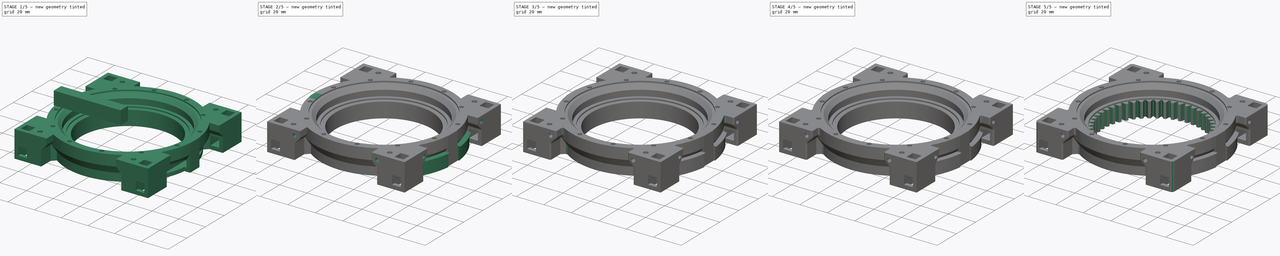
[diagram: build sequence overview — one tinted view per stage of 5, left to right]
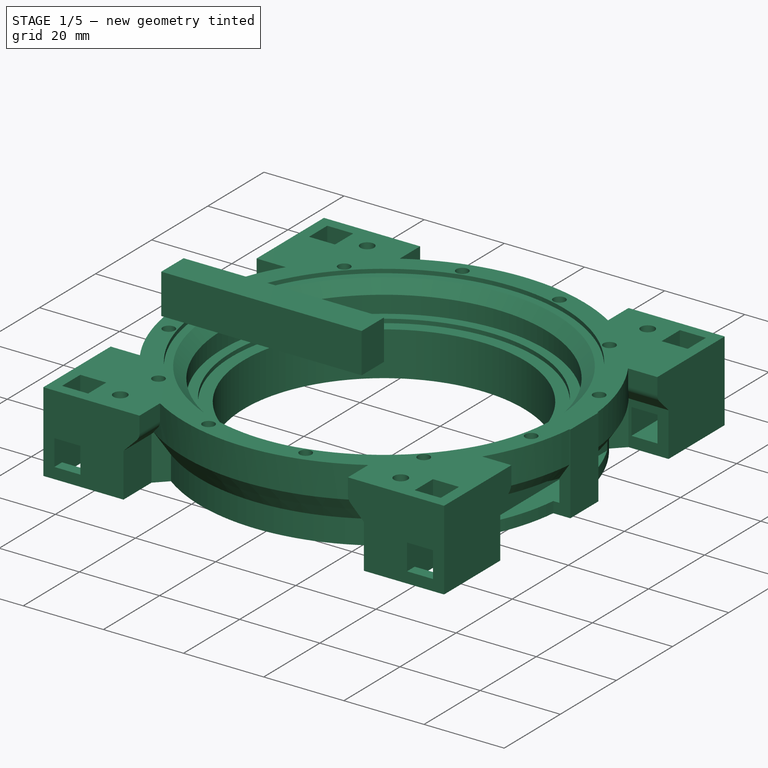
[diagram: stage 1 of 5 — iso view after this stage's code; geometry added in this stage tinted green]
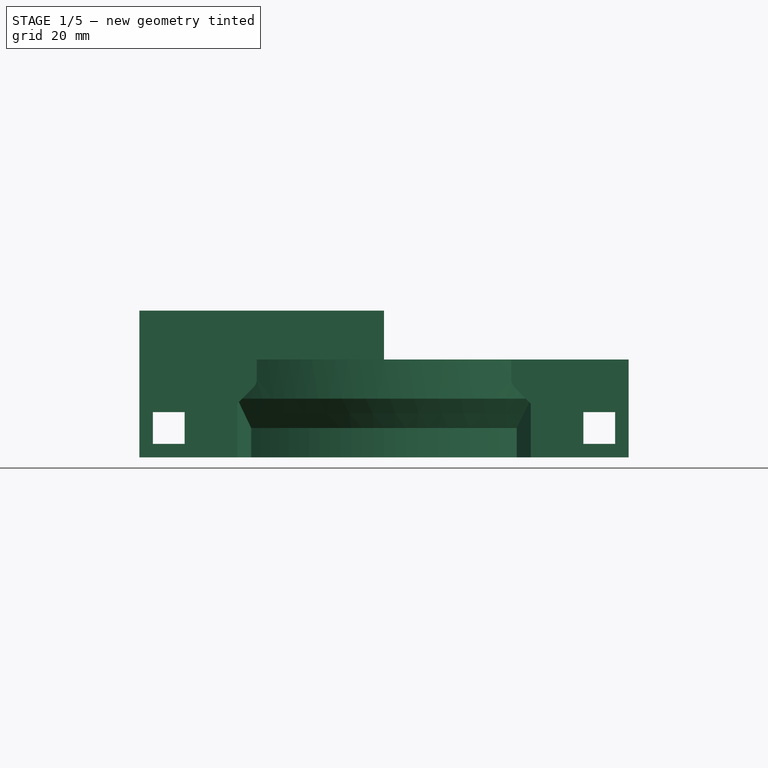
[diagram: stage 1 of 5 — front view after this stage's code; geometry added in this stage tinted green]
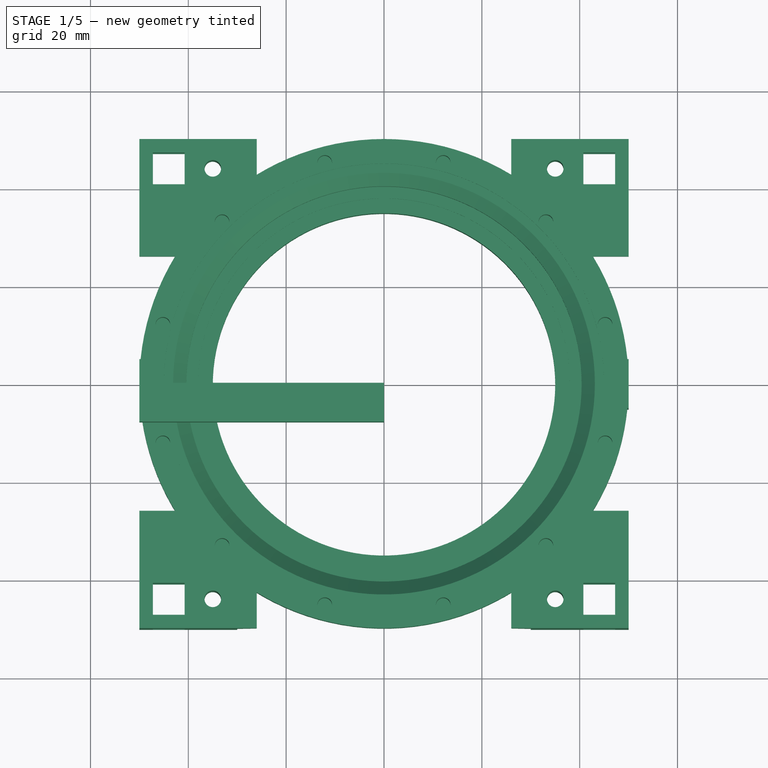
[diagram: stage 1 of 5 — top view after this stage's code; geometry added in this stage tinted green]
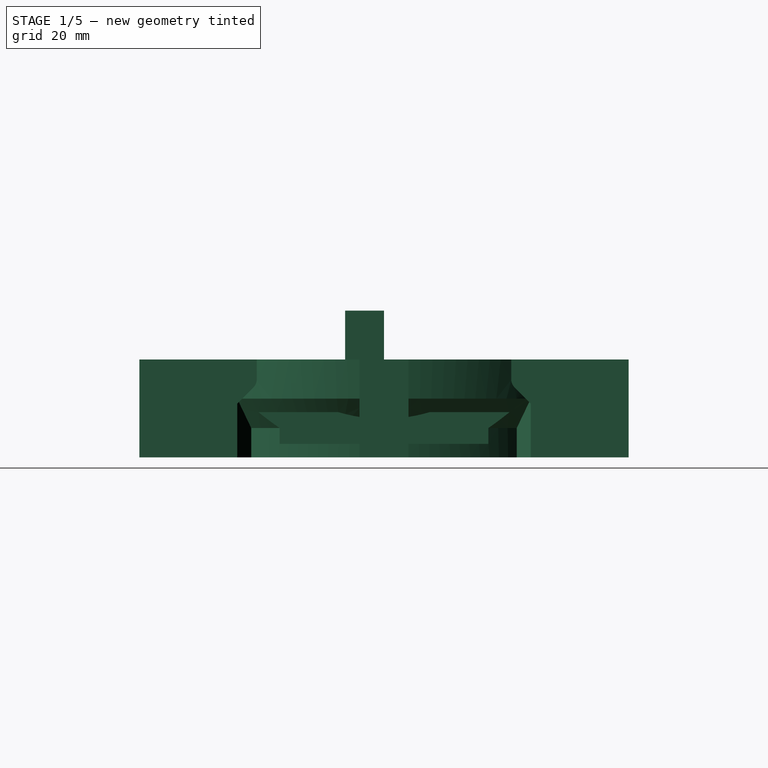
[diagram: stage 1 of 5 — right view after this stage's code; geometry added in this stage tinted green]
FCSTD DOCUMENT  (FreeCAD 0.16R6706 (Git))
Label: RingFixedV2
License: All rights reserved
LicenseURL: http://en.wikipedia.org/wiki/All_rights_reserved
objects: PartDesign::Fillet×36, Sketcher::SketchObject×12, PartDesign::Pad×7, PartDesign::Pocket×5, PartDesign::PolarPattern×4, PartDesign::Revolution×1, Part::Part2DObjectPython×1, PartDesign::Mirrored×1, Part::Cut×1
note: 81 computed .brp shape members not serialized (recipe doc carries the construction recipe); baked Part::Feature solids carry a one-line shape summary decoded from their .brp

FEATURE [Sketcher::SketchObject] Sketch013
  Placement = pos=(0,0,0) rot=(1,0,0;1.5708rad)
  sketch-geometry (24):
    g0: LineSegment StartX=35 StartY=9 StartZ=0 EndX=46 EndY=9 EndZ=0
    g1: LineSegment StartX=35 StartY=9 StartZ=0 EndX=35 EndY=20 EndZ=0
    g2: LineSegment StartX=46 StartY=9 StartZ=0 EndX=46 EndY=15 EndZ=0
    g3: LineSegment StartX=35 StartY=20 StartZ=0 EndX=38 EndY=20 EndZ=0
    g4: LineSegment StartX=38 StartY=20 StartZ=0 EndX=38 EndY=21 EndZ=0
    g5: LineSegment StartX=38 StartY=21 StartZ=0 EndX=40.4 EndY=21 EndZ=0
    g6: LineSegment StartX=46 StartY=15 StartZ=0 EndX=50 EndY=21 EndZ=0
    g7: LineSegment StartX=40.4 StartY=21 StartZ=0 EndX=40.4 EndY=25.2988 EndZ=0
    g8: LineSegment StartX=40.4 StartY=25.2988 StartZ=0 EndX=43.1012 EndY=28 EndZ=0
    g9: LineSegment StartX=45 StartY=29 StartZ=0 EndX=50 EndY=29 EndZ=0
    g10: LineSegment StartX=50 StartY=29 StartZ=0 EndX=50 EndY=21 EndZ=0
    g11: LineSegment StartX=43.1012 StartY=28 StartZ=0 EndX=45 EndY=28 EndZ=0
    g12: LineSegment StartX=45 StartY=28 StartZ=0 EndX=45 EndY=29 EndZ=0
    g13: Circle [constr] CenterX=40 CenterY=29 CenterZ=0 NormalX=0 NormalY=0 NormalZ=1 Radius=2.9
    g14: LineSegment [constr] StartX=40 StartY=29 StartZ=0 EndX=45 EndY=29 EndZ=0
    g15: Circle CenterX=44.1719 CenterY=24.8281 CenterZ=0 NormalX=0 NormalY=0 NormalZ=1 Radius=0.2
    g16: LineSegment [constr] StartX=42.0506 StartY=26.9494 StartZ=0 EndX=44.1719 EndY=24.8281 EndZ=0
    g17: Circle CenterX=39.5 CenterY=18 CenterZ=0 NormalX=0 NormalY=0 NormalZ=1 Radius=0.15
    g18: Circle CenterX=39.5 CenterY=16 CenterZ=0 NormalX=0 NormalY=0 NormalZ=1 Radius=0.15
    g19: Circle CenterX=39.5 CenterY=14 CenterZ=0 NormalX=0 NormalY=0 NormalZ=1 Radius=0.15
    g20: LineSegment [constr] StartX=39.5 StartY=21 StartZ=0 EndX=39.5 EndY=9 EndZ=0
    g21: Circle CenterX=39.5 CenterY=12 CenterZ=0 NormalX=0 NormalY=0 NormalZ=1 Radius=0.15
    g22: Circle CenterX=39.5 CenterY=10 CenterZ=0 NormalX=0 NormalY=0 NormalZ=1 Radius=0.15
    g23: LineSegment [constr] StartX=0 StartY=0 StartZ=0 EndX=0 EndY=29 EndZ=0
  constraints (75):
    c: Horizontal(g0)
    c: DistanceX(g-1,g0) = 46
    c: Vertical(g1)
    c: Coincident(g2,g0)
    c: Vertical(g2)
    c: Coincident(g3,g1)
    c: Horizontal(g3)
    c: Coincident(g4,g3)
    c: Vertical(g4)
    c: Coincident(g5,g4)
    c: Horizontal(g5)
    c: Coincident(g6,g2)
    c: DistanceX(g-1,g1) = 35
    c: DistanceY(g4,g1) = -12
    c: DistanceY(g3,g4) = 1
    c: DistanceX(g-1,g6) = 50
    c: DistanceX(g-1,g3) = 38
    c: Coincident(g5,g7)
    c: Vertical(g7)
    c: Coincident(g7,g8)
    c: Horizontal(g9)
    c: Coincident(g10,g9)
    c: Coincident(g10,g6)
    c: Vertical(g10)
    c: Coincident(g8,g11)
    c: Coincident(g11,g12)
    c: Coincident(g9,g12)
    c: Vertical(g12)
    c: Horizontal(g11)
    c: Radius(g13) = 2.9
    c: Tangent(g8,g13)
    c: Coincident(g14,g13)
    c: Horizontal(g14)
    c: Angle(g8,g14) = 2.35619
    c: DistanceX(g13,g7) = 0.4
    c: DistanceY(g8,g13) = 1
    c: Coincident(g9,g14)
    c: DistanceX(g-1,g11) = 45
    c: DistanceX(g-1,g13) = 40
    c: DistanceY(g4,g13) = 8
    c: DistanceY(g6,g9) = 8
    c: DistanceX(g9,g9) = 5
    c: DistanceX(g8,g11) = 1.89878
    c: DistanceY(g0,g9) = 20
    c: Radius(g15) = 0.2
    c: PointOnObject(g16,g13)
    c: PointOnObject(g16,g8)
    c: Angle(g8,g16) = 1.5708
    c: Coincident(g15,g16)
    c: Distance(g16,g15) = 3
    c: Vertical(g20)
    c: PointOnObject(g17,g20)
    c: PointOnObject(g18,g20)
    c: PointOnObject(g19,g20)
    c: Radius(g17) = 0.15
    c: Equal(g17,g18)
    c: Equal(g17,g19)
    c: PointOnObject(g20,g0)
    c: DistanceY(g17,g3) = 2
    c: DistanceY(g18,g17) = 2
    c: DistanceY(g19,g18) = 2
    c: PointOnObject(g20,g5)
    c: DistanceX(g3,g20) = 1.5
    c: PointOnObject(g21,g20)
    c: PointOnObject(g22,g20)
    c: Radius(g21) = 0.15
    c: Radius(g22) = 0.15
    c: DistanceY(g21,g19) = 2
    c: DistanceY(g22,g21) = 2
    c: Coincident(g0,g1)
    c: DistanceY(g2,g2) = 6
    c: DistanceY(g-1,g0) = 9
    c: Coincident(g23,g-1)
    c: Vertical(g23)
    c: DistanceY(g-1,g23) = 29
FEATURE [PartDesign::Revolution] Revolution
  Angle = 360
  Axis = (0,0,1)
  Base = (0,0,0)
  Placement = pos=(0,0,0) rot=(1,0,0;1.5708rad)
  ReferenceAxis = -> Sketch013 [V_Axis]
  Reversed = true
  Sketch = -> Sketch013
FEATURE [PartDesign::Pad] Pad
  Length = 20
  Length2 = 100
  Placement = pos=(0,0,0) rot=(1,0,0;1.5708rad)
  Reversed = true
  Sketch = -> Sketch022
  Type = 0
FEATURE [Sketcher::SketchObject] Sketch033  label="Motor Mount Holes"
  Placement = pos=(0,0,9) rot=(1,0,0;3.14159rad)
  Support = -> Pad [Face75]
  sketch-geometry (9):
    g0: LineSegment [constr] StartX=-30 StartY=30 StartZ=0 EndX=30 EndY=30 EndZ=0
    g1: LineSegment [constr] StartX=30 StartY=30 StartZ=0 EndX=30 EndY=-30 EndZ=0
    g2: LineSegment [constr] StartX=30 StartY=-30 StartZ=0 EndX=-30 EndY=-30 EndZ=0
    g3: LineSegment [constr] StartX=-30 StartY=-30 StartZ=0 EndX=-30 EndY=30 EndZ=0
    g4: Circle CenterX=30 CenterY=-30 CenterZ=0 NormalX=0 NormalY=0 NormalZ=1 Radius=1.5
    g5: Circle CenterX=-30 CenterY=-30 CenterZ=0 NormalX=0 NormalY=0 NormalZ=1 Radius=1.5
    g6: Circle CenterX=-30 CenterY=30 CenterZ=0 NormalX=0 NormalY=0 NormalZ=1 Radius=1.5
    g7: Circle CenterX=30 CenterY=30 CenterZ=0 NormalX=0 NormalY=0 NormalZ=1 Radius=1.5
    g8: Circle CenterX=0 CenterY=0 CenterZ=0 NormalX=0 NormalY=0 NormalZ=1 Radius=34
  constraints (21):
    c: Coincident(g0,g1)
    c: Coincident(g1,g2)
    c: Coincident(g2,g3)
    c: Coincident(g3,g0)
    c: Horizontal(g0)
    c: Horizontal(g2)
    c: Vertical(g1)
    c: Vertical(g3)
    c: Symmetric(g2,g0,g-1)
    c: Equal(g2,g1)
    c: DistanceY(g1,g0) = 60
    c: Coincident(g4,g1)
    c: Coincident(g5,g2)
    c: Coincident(g6,g0)
    c: Coincident(g7,g0)
    c: Radius(g7) = 1.5
    c: Equal(g7,g4)
    c: Equal(g7,g5)
    c: Equal(g7,g6)
    c: Coincident(g8,g-1)
    c: Radius(g8) = 34
FEATURE [PartDesign::Pocket] Pocket
  Length = 14
  Placement = pos=(0,0,0) rot=(1,0,0;1.5708rad)
  Sketch = -> Sketch033
  Type = 0
FEATURE [Sketcher::SketchObject] Sketch  label="BearingScrewHoles"
  Placement = pos=(0,0,29) rot=(0,0,1;3.14159rad)
  Support = -> Pocket [Face22]
  sketch-geometry (2):
    g0: Circle CenterX=45.2053 CenterY=12.1127 CenterZ=0 NormalX=0 NormalY=0 NormalZ=1 Radius=1.5
    g1: LineSegment [constr] StartX=0 StartY=0 StartZ=0 EndX=45.2053 EndY=12.1127 EndZ=0
  constraints (5):
    c: Radius(g0) = 1.5
    c: Coincident(g1,g-1)
    c: Coincident(g1,g0)
    c: Distance(g-1,g0) = 46.8
    c: Angle(g-1,g1) = 0.261799
FEATURE [PartDesign::Pocket] Pocket001
  Length = 10
  Placement = pos=(0,0,0) rot=(1,0,0;1.5708rad)
  Sketch = -> Sketch
  Type = 0
FEATURE [PartDesign::PolarPattern] PolarPattern
  Angle = 360
  Axis = -> Sketch [N_Axis]
  Occurrences = 12
  Originals = -> [Pocket001]
  Placement = pos=(0,0,0) rot=(1,0,0;1.5708rad)
FEATURE [Sketcher::SketchObject] Sketch034
  Placement = pos=(0,0,9) rot=(1,0,0;3.14159rad)
  Support = -> PolarPattern [Face99]
  sketch-geometry (4):
    g0: LineSegment StartX=-50 StartY=5 StartZ=0 EndX=-44.7214 EndY=5 EndZ=0
    g1: LineSegment StartX=-44.7214 StartY=-5 StartZ=0 EndX=-50 EndY=-5 EndZ=0
    g2: LineSegment StartX=-50 StartY=-5 StartZ=0 EndX=-50 EndY=5 EndZ=0
    g3: ArcOfCircle CenterX=0 CenterY=0 CenterZ=0 NormalX=0 NormalY=0 NormalZ=1 Radius=45 StartAngle=3.03025 EndAngle=3.25293
  constraints (12):
    c: Coincident(g1,g2)
    c: Coincident(g2,g0)
    c: Horizontal(g0)
    c: Horizontal(g1)
    c: Vertical(g2)
    c: Coincident(g3,g-1)
    c: Coincident(g3,g0)
    c: Coincident(g1,g3)
    c: Radius(g3) = 45
    c: DistanceX(g1,g-1) = 50
    c: Symmetric(g1,g0,g-1)
    c: DistanceY(g1,g0) = 10
FEATURE [PartDesign::Pad] Pad014
  Length = 20
  Length2 = 100
  Placement = pos=(0,0,0) rot=(1,0,0;1.5708rad)
  Reversed = true
  Sketch = -> Sketch034
  Type = 0
FEATURE [PartDesign::PolarPattern] PolarPattern001
  Angle = 360
  Axis = -> Sketch034 [N_Axis]
  Occurrences = 2
  Originals = -> [Pad014]
  Placement = pos=(0,0,0) rot=(1,0,0;1.5708rad)
FEATURE [Sketcher::SketchObject] Sketch024  label="VerticalMountPlane"
  Placement = pos=(0,-50,0) rot=(1,0,0;1.5708rad)
  Support = -> PolarPattern001 [Face94]
  sketch-geometry (10):
    g0: LineSegment StartX=-47.25 StartY=18.25 StartZ=0 EndX=-40.75 EndY=18.25 EndZ=0
    g1: LineSegment StartX=-40.75 StartY=18.25 StartZ=0 EndX=-40.75 EndY=11.75 EndZ=0
    g2: LineSegment StartX=-40.75 StartY=11.75 StartZ=0 EndX=-47.25 EndY=11.75 EndZ=0
    g3: LineSegment StartX=-47.25 StartY=11.75 StartZ=0 EndX=-47.25 EndY=18.25 EndZ=0
    g4: LineSegment StartX=40.75 StartY=18.25 StartZ=0 EndX=47.25 EndY=18.25 EndZ=0
    g5: LineSegment StartX=47.25 StartY=18.25 StartZ=0 EndX=47.25 EndY=11.75 EndZ=0
    g6: LineSegment StartX=47.25 StartY=11.75 StartZ=0 EndX=40.75 EndY=11.75 EndZ=0
    g7: LineSegment StartX=40.75 StartY=11.75 StartZ=0 EndX=40.75 EndY=18.25 EndZ=0
    g8: GeomPoint [constr] X=-44 Y=15 Z=0
    g9: GeomPoint [constr] X=44 Y=15 Z=0
  constraints (24):
    c: Coincident(g0,g1)
    c: Coincident(g1,g2)
    c: Coincident(g2,g3)
    c: Coincident(g3,g0)
    c: Horizontal(g0)
    c: Horizontal(g2)
    c: Vertical(g1)
    c: Vertical(g3)
    c: Coincident(g4,g5)
    c: Coincident(g5,g6)
    c: Coincident(g6,g7)
    c: Coincident(g7,g4)
    c: Horizontal(g4)
    c: Horizontal(g6)
    c: Vertical(g5)
    c: Vertical(g7)
    c: Symmetric(g1,g6,g-2)
    c: Symmetric(g0,g4,g-2)
    c: Equal(g1,g2)
    c: DistanceX(g2,g1) = 6.5
    c: Symmetric(g2,g0,g8)
    c: Symmetric(g4,g6,g9)
    c: DistanceX(g8,g9) = 88
    c: DistanceY(g-1,g8) = 15
FEATURE [PartDesign::Pocket] Pocket002
  Length = 5
  Placement = pos=(0,0,0) rot=(1,0,0;1.5708rad)
  Sketch = -> Sketch024
  Type = 1
FEATURE [Sketcher::SketchObject] Sketch036  label="RefBar"
  Placement = pos=(0,0,29) rot=(0,0,1;3.14159rad)
  Support = -> Pocket002 [Face48]
  sketch-geometry (4):
    g0: LineSegment StartX=0 StartY=7.95866 StartZ=0 EndX=50 EndY=7.95866 EndZ=0
    g1: LineSegment StartX=50 StartY=7.95866 StartZ=0 EndX=50 EndY=0 EndZ=0
    g2: LineSegment StartX=50 StartY=0 StartZ=0 EndX=0 EndY=0 EndZ=0
    g3: LineSegment StartX=0 StartY=0 StartZ=0 EndX=0 EndY=7.95866 EndZ=0
  constraints (11):
    c: Coincident(g0,g1)
    c: Coincident(g1,g2)
    c: Coincident(g2,g3)
    c: Coincident(g3,g0)
    c: Horizontal(g0)
    c: Horizontal(g2)
    c: Vertical(g1)
    c: Vertical(g3)
    c: PointOnObject(g0,g-2)
    c: PointOnObject(g1,g-1)
    c: DistanceX(g-1,g1) = 50
FEATURE [PartDesign::Pad] Pad016
  Length = 10
  Length2 = 100
  Placement = pos=(0,0,0) rot=(1,0,0;1.5708rad)
  Sketch = -> Sketch036
  Type = 0
FEATURE [Sketcher::SketchObject] Sketch035  label="SideExtension"
  Placement = pos=(0,-50,0) rot=(1,0,0;1.5708rad)
  Support = -> Pad016 [Face97]
  sketch-geometry (10):
    g0: LineSegment StartX=-30 StartY=29 StartZ=0 EndX=-26 EndY=29 EndZ=0
    g1: LineSegment StartX=-26 StartY=29 StartZ=0 EndX=-26 EndY=25 EndZ=0
    g2: LineSegment StartX=-30 StartY=20 StartZ=0 EndX=-30 EndY=29 EndZ=0
    g3: LineSegment StartX=-26.7071 StartY=23.2929 StartZ=0 EndX=-30 EndY=20 EndZ=0
    g4: LineSegment StartX=30 StartY=29 StartZ=0 EndX=26 EndY=29 EndZ=0
    g5: LineSegment StartX=26 StartY=29 StartZ=0 EndX=26 EndY=25 EndZ=0
    g6: LineSegment StartX=30 StartY=20 StartZ=0 EndX=30 EndY=29 EndZ=0
    g7: LineSegment StartX=26.7071 StartY=23.2929 StartZ=0 EndX=30 EndY=20 EndZ=0
    g8: ArcOfCircle CenterX=-28.4142 CenterY=25 CenterZ=0 NormalX=0 NormalY=0 NormalZ=1 Radius=2.41421 StartAngle=5.49779 EndAngle=6.28319
    g9: ArcOfCircle CenterX=28.4142 CenterY=25 CenterZ=0 NormalX=0 NormalY=0 NormalZ=1 Radius=2.41421 StartAngle=3.14159 EndAngle=3.92699
  constraints (26):
    c: Coincident(g0,g1)
    c: Coincident(g2,g0)
    c: Horizontal(g0)
    c: Vertical(g1)
    c: Vertical(g2)
    c: DistanceY(g-1,g0) = 29
    c: DistanceX(g2,g-1) = 30
    c: Coincident(g3,g2)
    c: Angle(g3,g2) = 0.785398
    c: DistanceY(g-1,g2) = 20
    c: DistanceX(g0,g0) = 4
    c: Coincident(g4,g5)
    c: Coincident(g6,g4)
    c: Horizontal(g4)
    c: Vertical(g5)
    c: Vertical(g6)
    c: Coincident(g7,g6)
    c: Angle(g6,g7) = 0.785398
    c: Symmetric(g2,g6,g-2)
    c: Symmetric(g0,g4,g-2)
    c: Tangent(g1,g8) = 1.5708
    c: Tangent(g3,g8) = 1.5708
    c: Tangent(g7,g9) = -1.5708
    c: Tangent(g5,g9) = -1.5708
    c: DistanceY(g8,g0) = 4
    c: DistanceY(g9,g4) = 4
FEATURE [PartDesign::Pad] Pad015
  Length = 11
  Length2 = 100
  Placement = pos=(0,0,0) rot=(1,0,0;1.5708rad)
  Reversed = true
  Sketch = -> Sketch035
  Type = 0
FEATURE [PartDesign::PolarPattern] PolarPattern002
  Angle = 360
  Axis = -> Pad015 [Edge192]
  Occurrences = 4
  Originals = -> [Pad015]
  Placement = pos=(0,0,0) rot=(1,0,0;1.5708rad)
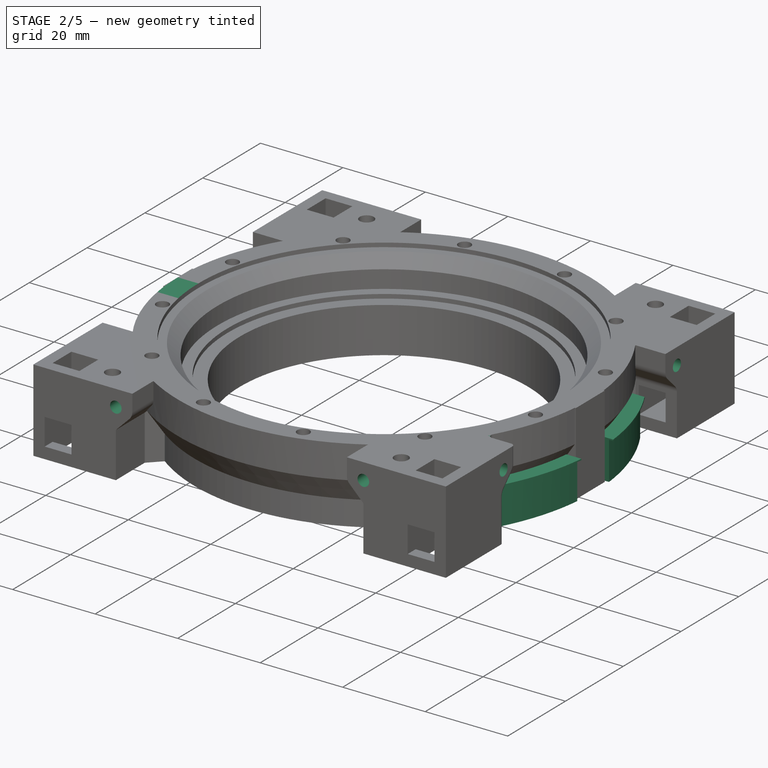
[diagram: stage 2 of 5 — iso view after this stage's code; geometry added in this stage tinted green]
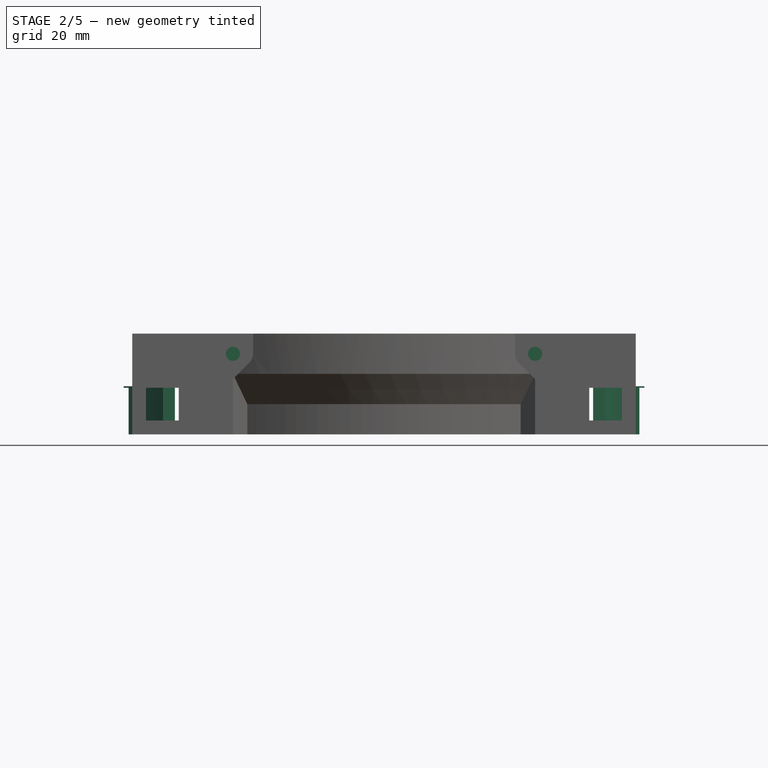
[diagram: stage 2 of 5 — front view after this stage's code; geometry added in this stage tinted green]
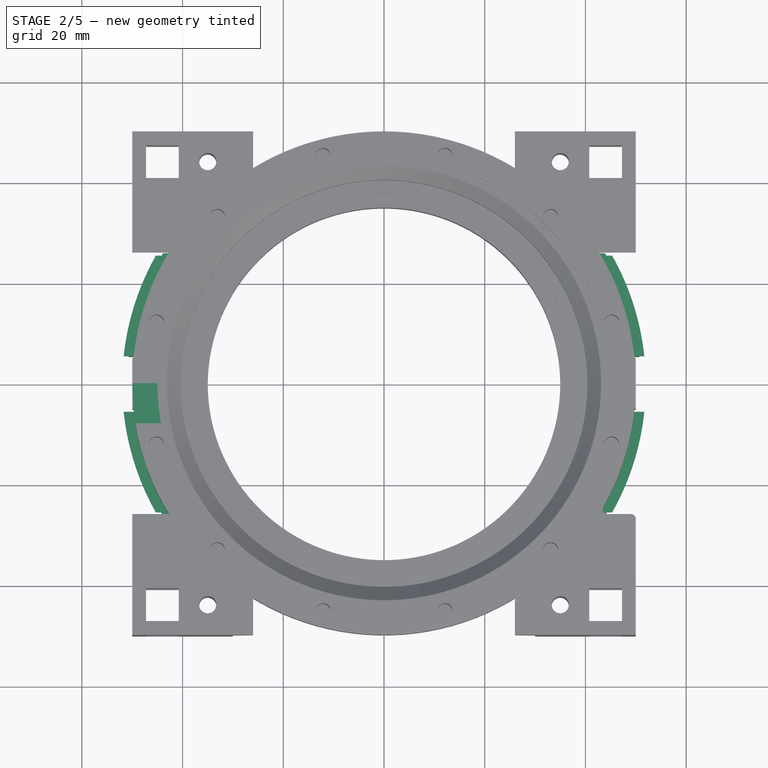
[diagram: stage 2 of 5 — top view after this stage's code; geometry added in this stage tinted green]
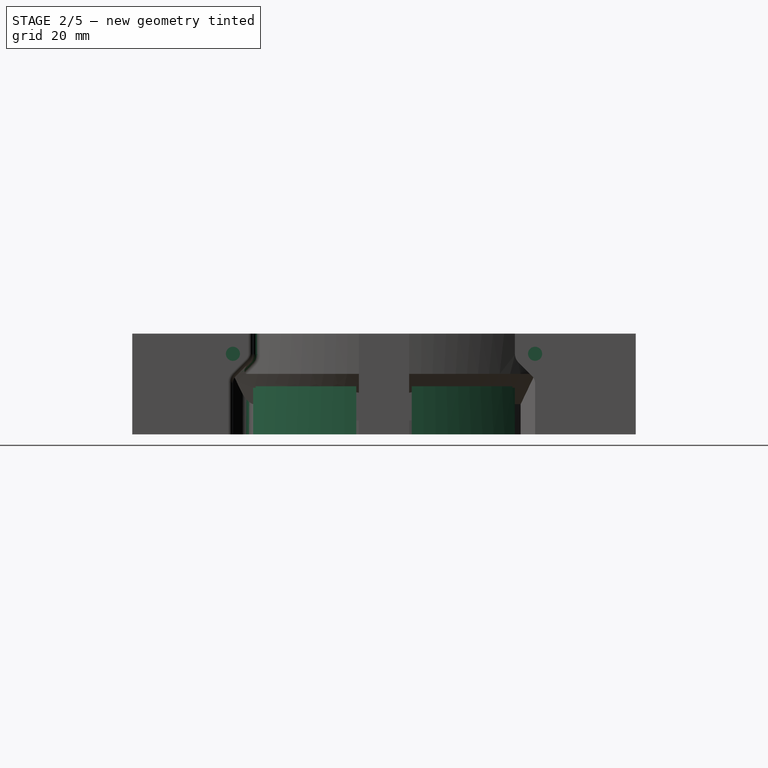
[diagram: stage 2 of 5 — right view after this stage's code; geometry added in this stage tinted green]
FEATURE [Sketcher::SketchObject] Sketch025  label="SideScrewHoles"
  Placement = pos=(0,-50,0) rot=(1,0,0;1.5708rad)
  Support = -> PolarPattern002 [Face131]
  sketch-geometry (5):
    g0: Circle CenterX=30 CenterY=25 CenterZ=0 NormalX=0 NormalY=0 NormalZ=1 Radius=1.4
    g1: Circle CenterX=-30 CenterY=25 CenterZ=0 NormalX=0 NormalY=0 NormalZ=1 Radius=1.4
    g2: LineSegment [constr] StartX=-30 StartY=25 StartZ=0 EndX=30 EndY=25 EndZ=0
    g3: Circle [constr] CenterX=-20 CenterY=25 CenterZ=0 NormalX=0 NormalY=0 NormalZ=1 Radius=1.4
    g4: Circle [constr] CenterX=20 CenterY=25 CenterZ=0 NormalX=0 NormalY=0 NormalZ=1 Radius=1.4
  constraints (13):
    c: Coincident(g2,g1)
    c: Coincident(g2,g0)
    c: Radius(g0) = 1.4
    c: Equal(g0,g1)
    c: DistanceX(g1,g0) = 60
    c: DistanceY(g-1,g1) = 25
    c: PointOnObject(g3,g2)
    c: Radius(g3) = 1.4
    c: PointOnObject(g4,g2)
    c: Radius(g4) = 1.4
    c: Symmetric(g1,g0,g-2)
    c: Symmetric(g3,g4,g-2)
    c: DistanceX(g3,g4) = 40
FEATURE [PartDesign::Pocket] Pocket003
  Length = 15
  Placement = pos=(0,0,0) rot=(1,0,0;1.5708rad)
  Sketch = -> Sketch025
  Type = 0
FEATURE [PartDesign::PolarPattern] PolarPattern003
  Angle = 360
  Axis = -> Pocket003 [Edge237]
  Occurrences = 4
  Originals = -> [Pocket003]
  Placement = pos=(0,0,0) rot=(1,0,0;1.5708rad)
FEATURE [Sketcher::SketchObject] Sketch038  label="Suport WIngs"
  Placement = pos=(0,0,18.25) rot=(1,0,0;3.14159rad)
  Support = -> PolarPattern003 [Face239]
  sketch-geometry (8):
    g0: ArcOfCircle CenterX=0 CenterY=0 CenterZ=0 NormalX=0 NormalY=0 NormalZ=1 Radius=47 StartAngle=2.56812 EndAngle=3.0243
    g1: ArcOfCircle CenterX=0 CenterY=0 CenterZ=0 NormalX=0 NormalY=0 NormalZ=1 Radius=52 StartAngle=2.62906 EndAngle=3.03563
    g2: LineSegment StartX=-51.7083 StartY=5.5 StartZ=0 EndX=-46.6771 EndY=5.5 EndZ=0
    g3: LineSegment StartX=-39.481 StartY=25.5 StartZ=0 EndX=-45.3183 EndY=25.5 EndZ=0
    g4: ArcOfCircle CenterX=0 CenterY=0 CenterZ=0 NormalX=0 NormalY=0 NormalZ=1 Radius=47 StartAngle=0.11729 EndAngle=0.573474
    g5: ArcOfCircle CenterX=0 CenterY=0 CenterZ=0 NormalX=0 NormalY=0 NormalZ=1 Radius=52 StartAngle=0.105967 EndAngle=0.512531
    g6: LineSegment StartX=51.7083 StartY=5.5 StartZ=0 EndX=46.6771 EndY=5.5 EndZ=0
    g7: LineSegment StartX=39.481 StartY=25.5 StartZ=0 EndX=45.3183 EndY=25.5 EndZ=0
  constraints (23):
    c: Coincident(g0,g-1)
    c: Coincident(g1,g-1)
    c: Radius(g1) = 52
    c: Radius(g0) = 47
    c: Coincident(g2,g1)
    c: Coincident(g2,g0)
    c: Coincident(g3,g1)
    c: Horizontal(g3)
    c: Horizontal(g2)
    c: Coincident(g3,g0)
    c: DistanceY(g-1,g1) = 25.5
    c: DistanceY(g-1,g0) = 5.5
    c: Radius(g4) = 47
    c: Coincident(g6,g5)
    c: Coincident(g6,g4)
    c: Coincident(g7,g5)
    c: Horizontal(g7)
    c: Horizontal(g6)
    c: Coincident(g7,g4)
    c: Coincident(g4,g5)
    c: Coincident(g-1,g4)
    c: Symmetric(g4,g0,g-2)
    c: Symmetric(g5,g1,g-2)
FEATURE [PartDesign::Pad] Pad018
  Length = 0.3
  Length2 = 100
  Placement = pos=(0,0,0) rot=(1,0,0;1.5708rad)
  Reversed = true
  Sketch = -> Sketch038
  Type = 0
FEATURE [PartDesign::Mirrored] Mirrored
  MirrorPlane = -> Sketch038 [H_Axis]
  Originals = -> [Pad018]
  Placement = pos=(0,0,0) rot=(1,0,0;1.5708rad)
FEATURE [Sketcher::SketchObject] Sketch037  label="Support Columns"
  Placement = pos=(0,0,18.25) rot=(1,0,0;3.14159rad)
  Support = -> Mirrored [Face263]
  sketch-geometry (16):
    g0: ArcOfCircle CenterX=0 CenterY=0 CenterZ=0 NormalX=0 NormalY=0 NormalZ=1 Radius=49 StartAngle=2.58227 EndAngle=3.02911
    g1: ArcOfCircle CenterX=0 CenterY=0 CenterZ=0 NormalX=0 NormalY=0 NormalZ=1 Radius=51 StartAngle=2.60664 EndAngle=3.03354
    g2: LineSegment StartX=-43.8748 StartY=26 StartZ=0 EndX=-41.5331 EndY=26 EndZ=0
    g3: LineSegment StartX=-50.7026 StartY=5.5 StartZ=0 EndX=-48.6903 EndY=5.5 EndZ=0
    g4: ArcOfCircle CenterX=0 CenterY=0 CenterZ=0 NormalX=0 NormalY=0 NormalZ=1 Radius=49 StartAngle=0.112482 EndAngle=0.559323
    g5: ArcOfCircle CenterX=0 CenterY=0 CenterZ=0 NormalX=0 NormalY=0 NormalZ=1 Radius=51 StartAngle=0.108053 EndAngle=0.534957
    g6: LineSegment StartX=43.8748 StartY=26 StartZ=0 EndX=41.5331 EndY=26 EndZ=0
    g7: LineSegment StartX=50.7026 StartY=5.5 StartZ=0 EndX=48.6903 EndY=5.5 EndZ=0
    g8: ArcOfCircle CenterX=0 CenterY=0 CenterZ=0 NormalX=0 NormalY=0 NormalZ=1 Radius=49 StartAngle=3.25407 EndAngle=3.70092
    g9: ArcOfCircle CenterX=0 CenterY=0 CenterZ=0 NormalX=0 NormalY=0 NormalZ=1 Radius=51 StartAngle=3.24965 EndAngle=3.67655
    g10: LineSegment StartX=-43.8748 StartY=-26 StartZ=0 EndX=-41.5331 EndY=-26 EndZ=0
    g11: LineSegment StartX=-50.7026 StartY=-5.5 StartZ=0 EndX=-48.6903 EndY=-5.5 EndZ=0
    g12: ArcOfCircle CenterX=0 CenterY=0 CenterZ=0 NormalX=0 NormalY=0 NormalZ=1 Radius=49 StartAngle=5.72386 EndAngle=6.1707
    g13: ArcOfCircle CenterX=0 CenterY=0 CenterZ=0 NormalX=0 NormalY=0 NormalZ=1 Radius=51 StartAngle=5.74823 EndAngle=6.17513
    g14: LineSegment StartX=43.8748 StartY=-26 StartZ=0 EndX=41.5331 EndY=-26 EndZ=0
    g15: LineSegment StartX=50.7026 StartY=-5.5 StartZ=0 EndX=48.6903 EndY=-5.5 EndZ=0
  constraints (47):
    c: Coincident(g0,g-1)
    c: Coincident(g1,g-1)
    c: Coincident(g2,g1)
    c: Coincident(g2,g0)
    c: Coincident(g3,g1)
    c: Coincident(g3,g0)
    c: Horizontal(g2)
    c: Horizontal(g3)
    c: DistanceY(g-1,g0) = 5.5
    c: DistanceY(g-1,g0) = 26
    c: Radius(g0) = 49
    c: Radius(g1) = 51
    c: Coincident(g6,g5)
    c: Coincident(g6,g4)
    c: Coincident(g7,g5)
    c: Coincident(g7,g4)
    c: Horizontal(g6)
    c: Horizontal(g7)
    c: Radius(g4) = 49
    c: Radius(g5) = 51
    c: Symmetric(g0,g4,g-2)
    c: Symmetric(g0,g4,g-2)
    c: Coincident(g10,g9)
    c: Coincident(g10,g8)
    c: Coincident(g11,g9)
    c: Coincident(g11,g8)
    c: Horizontal(g10)
    c: Horizontal(g11)
    c: Radius(g8) = 49
    c: Radius(g9) = 51
    c: Coincident(g14,g13)
    c: Coincident(g14,g12)
    c: Coincident(g15,g13)
    c: Coincident(g15,g12)
    c: Horizontal(g14)
    c: Horizontal(g15)
    c: Radius(g12) = 49
    c: Radius(g13) = 51
    c: Symmetric(g9,g1,g-1)
    c: Symmetric(g8,g0,g-1)
    c: Symmetric(g12,g8,g-2)
    c: Symmetric(g12,g8,g-2)
    c: Coincident(g9,g8)
    c: Coincident(g9,g12)
    c: Coincident(g9,g5)
    c: Coincident(g9,g13)
    c: Coincident(g9,g-1)
FEATURE [PartDesign::Pad] Pad019
  Length = 9.25
  Length2 = 100
  Placement = pos=(0,0,0) rot=(1,0,0;1.5708rad)
  Sketch = -> Sketch037
  Type = 0
FEATURE [Sketcher::SketchObject] Sketch040
  Placement = pos=(0,-50,0) rot=(1,0,0;1.5708rad)
  Support = -> Pad019 [Face131]
  sketch-geometry (4):
    g0: LineSegment StartX=-55 StartY=49 StartZ=0 EndX=55 EndY=49 EndZ=0
    g1: LineSegment StartX=55 StartY=49 StartZ=0 EndX=55 EndY=29 EndZ=0
    g2: LineSegment StartX=55 StartY=29 StartZ=0 EndX=-55 EndY=29 EndZ=0
    g3: LineSegment StartX=-55 StartY=29 StartZ=0 EndX=-55 EndY=49 EndZ=0
  constraints (12):
    c: Coincident(g0,g1)
    c: Coincident(g1,g2)
    c: Coincident(g2,g3)
    c: Coincident(g3,g0)
    c: Horizontal(g0)
    c: Horizontal(g2)
    c: Vertical(g1)
    c: Vertical(g3)
    c: DistanceY(g-1,g1) = 29
    c: Symmetric(g1,g2,g-2)
    c: DistanceX(g0,g0) = 110
    c: DistanceY(g2,g0) = 20
FEATURE [PartDesign::Pocket] Pocket004
  Length = 5
  Placement = pos=(0,0,0) rot=(1,0,0;1.5708rad)
  Sketch = -> Sketch040
  Type = 1
FEATURE [PartDesign::Fillet] Fillet
  Base = -> Pocket004 [Edge280]
  Placement = pos=(0,0,0) rot=(1,0,0;1.5708rad)
  Radius = 2
FEATURE [PartDesign::Fillet] Fillet001
  Base = -> Fillet [Edge23]
  Placement = pos=(0,0,0) rot=(1,0,0;1.5708rad)
  Radius = 1
FEATURE [PartDesign::Fillet] Fillet002
  Base = -> Fillet001 [Edge124]
  Placement = pos=(0,0,0) rot=(1,0,0;1.5708rad)
  Radius = 1
FEATURE [PartDesign::Fillet] Fillet003
  Base = -> Fillet002 [Edge79]
  Placement = pos=(0,0,0) rot=(1,0,0;1.5708rad)
  Radius = 2
FEATURE [PartDesign::Fillet] Fillet004
  Base = -> Fillet003 [Edge259]
  Placement = pos=(0,0,0) rot=(1,0,0;1.5708rad)
  Radius = 2
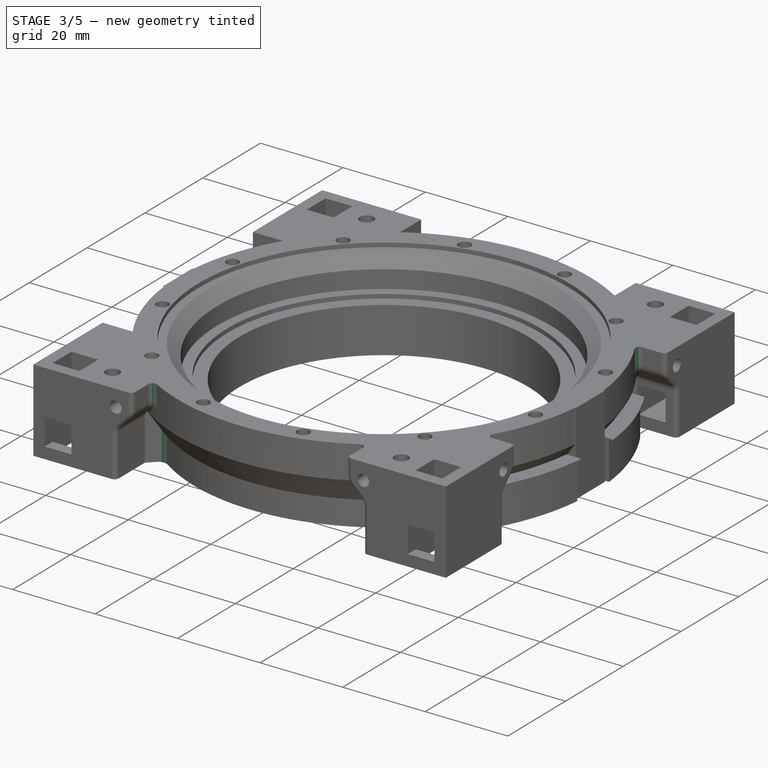
[diagram: stage 3 of 5 — iso view after this stage's code; geometry added in this stage tinted green]
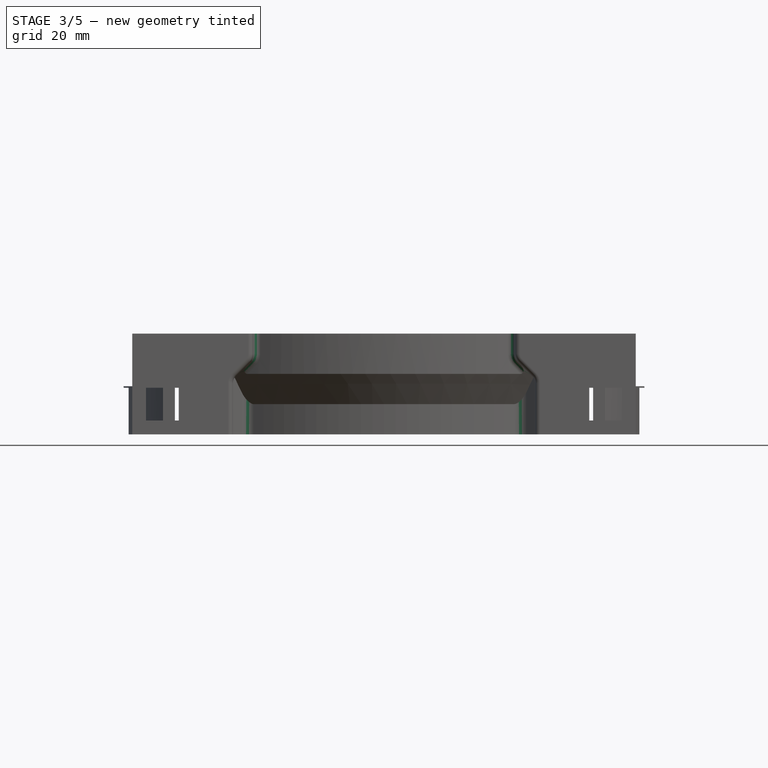
[diagram: stage 3 of 5 — front view after this stage's code; geometry added in this stage tinted green]
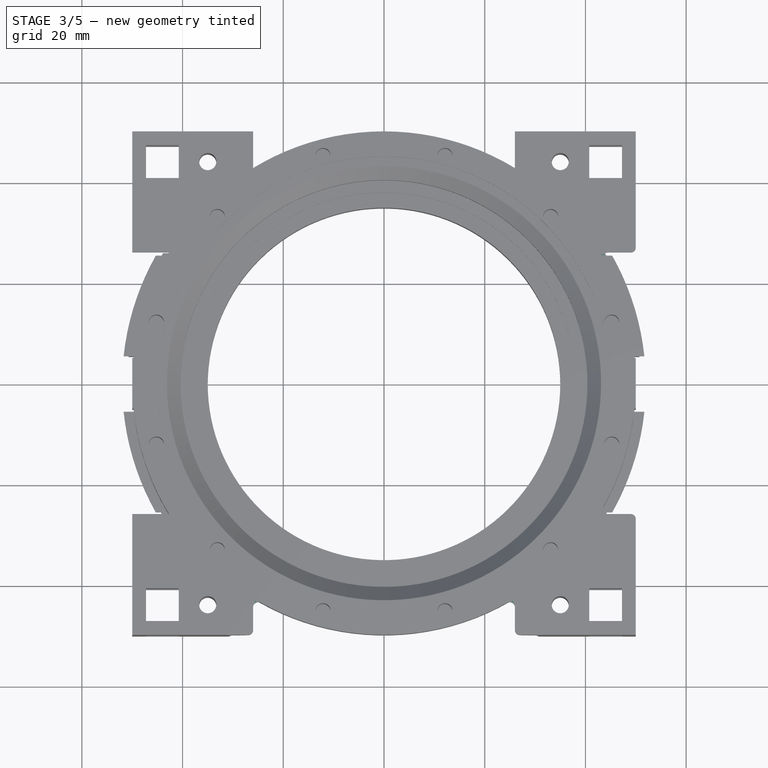
[diagram: stage 3 of 5 — top view after this stage's code; geometry added in this stage tinted green]
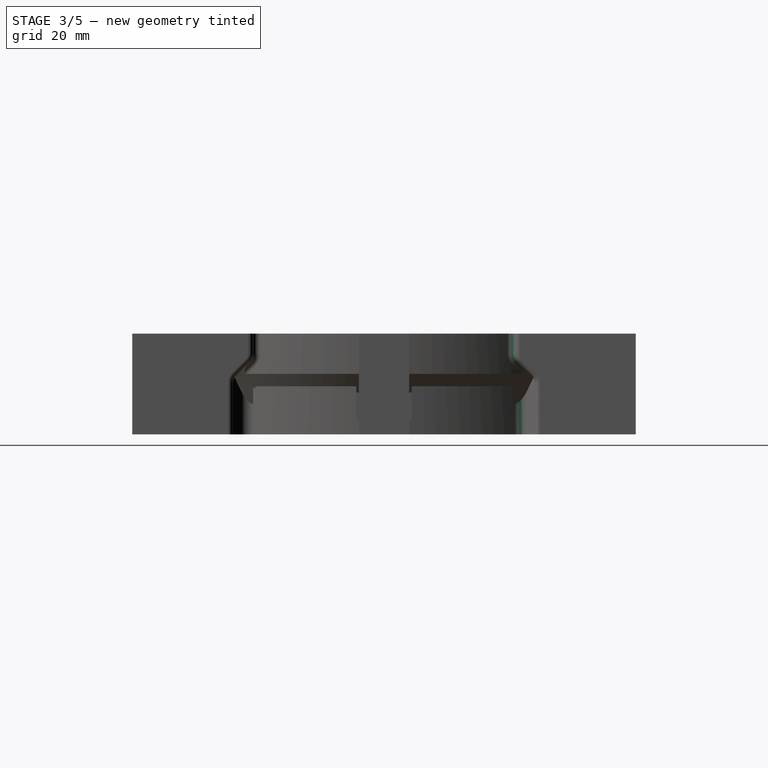
[diagram: stage 3 of 5 — right view after this stage's code; geometry added in this stage tinted green]
FEATURE [PartDesign::Fillet] Fillet005
  Base = -> Fillet004 [Edge66]
  Placement = pos=(0,0,0) rot=(1,0,0;1.5708rad)
  Radius = 1
FEATURE [PartDesign::Fillet] Fillet006
  Base = -> Fillet005 [Edge38]
  Placement = pos=(0,0,0) rot=(1,0,0;1.5708rad)
  Radius = 1
FEATURE [PartDesign::Fillet] Fillet007
  Base = -> Fillet006 [Edge71]
  Placement = pos=(0,0,0) rot=(1,0,0;1.5708rad)
  Radius = 2
FEATURE [PartDesign::Fillet] Fillet008
  Base = -> Fillet007 [Edge375]
  Placement = pos=(0,0,0) rot=(1,0,0;1.5708rad)
  Radius = 2
FEATURE [PartDesign::Fillet] Fillet009
  Base = -> Fillet008 [Edge8]
  Placement = pos=(0,0,0) rot=(1,0,0;1.5708rad)
  Radius = 1
FEATURE [PartDesign::Fillet] Fillet010
  Base = -> Fillet009 [Edge113]
  Placement = pos=(0,0,0) rot=(1,0,0;1.5708rad)
  Radius = 1
FEATURE [PartDesign::Fillet] Fillet011
  Base = -> Fillet010 [Edge53]
  Placement = pos=(0,0,0) rot=(1,0,0;1.5708rad)
  Radius = 2
FEATURE [PartDesign::Fillet] Fillet012
  Base = -> Fillet011 [Edge33]
  Placement = pos=(0,0,0) rot=(1,0,0;1.5708rad)
  Radius = 1
FEATURE [PartDesign::Fillet] Fillet013
  Base = -> Fillet012 [Edge27]
  Placement = pos=(0,0,0) rot=(1,0,0;1.5708rad)
  Radius = 2
FEATURE [PartDesign::Fillet] Fillet014
  Base = -> Fillet013 [Edge59]
  Placement = pos=(0,0,0) rot=(1,0,0;1.5708rad)
  Radius = 1
FEATURE [PartDesign::Fillet] Fillet015
  Base = -> Fillet014 [Edge38]
  Placement = pos=(0,0,0) rot=(1,0,0;1.5708rad)
  Radius = 2
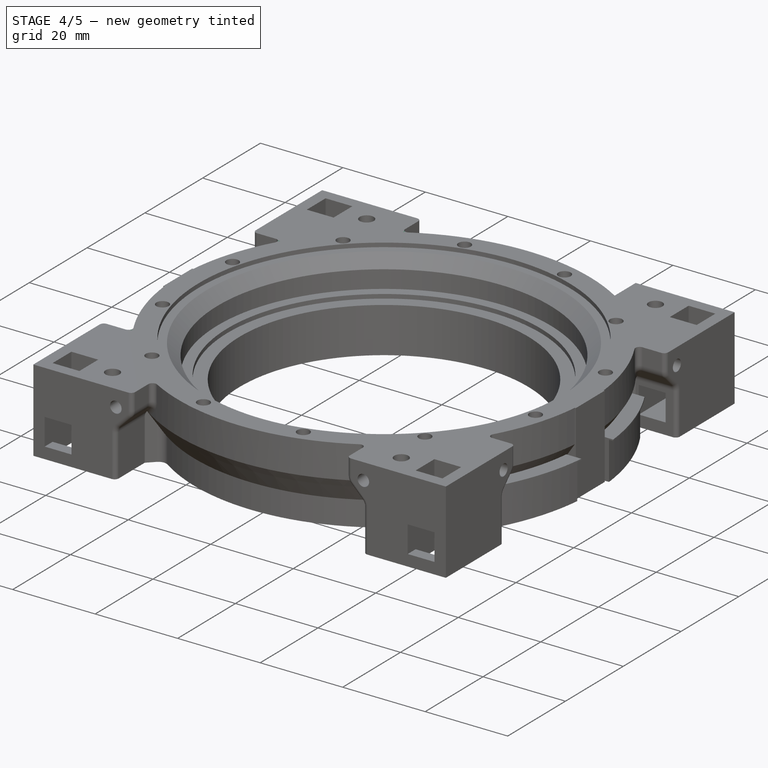
[diagram: stage 4 of 5 — iso view after this stage's code; geometry added in this stage tinted green]
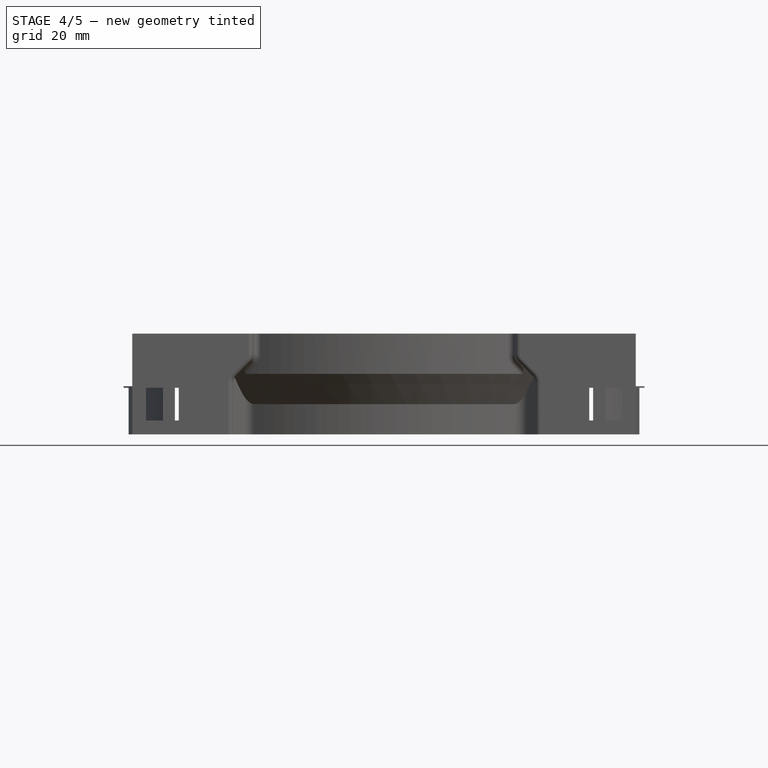
[diagram: stage 4 of 5 — front view after this stage's code; geometry added in this stage tinted green]
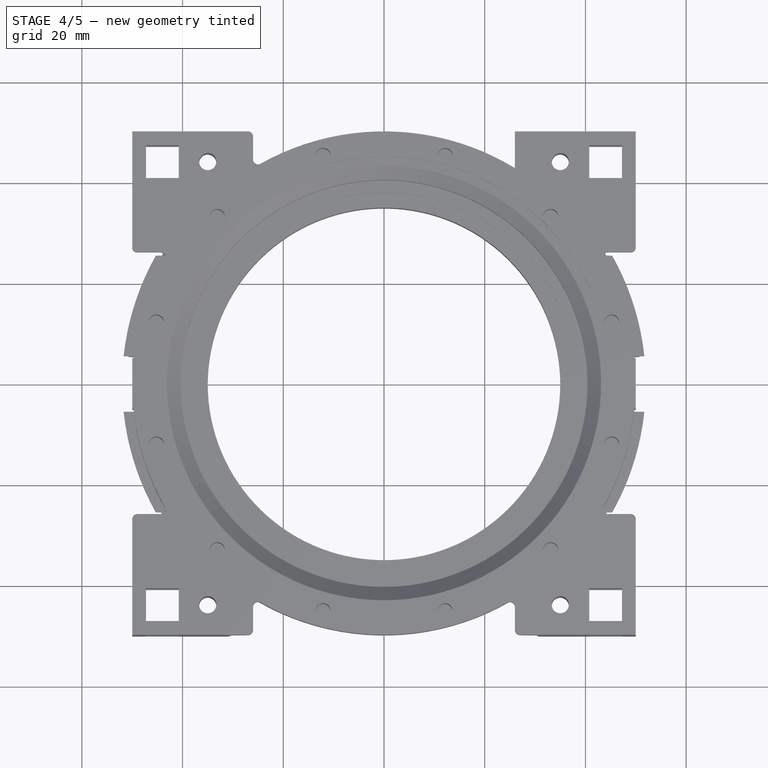
[diagram: stage 4 of 5 — top view after this stage's code; geometry added in this stage tinted green]
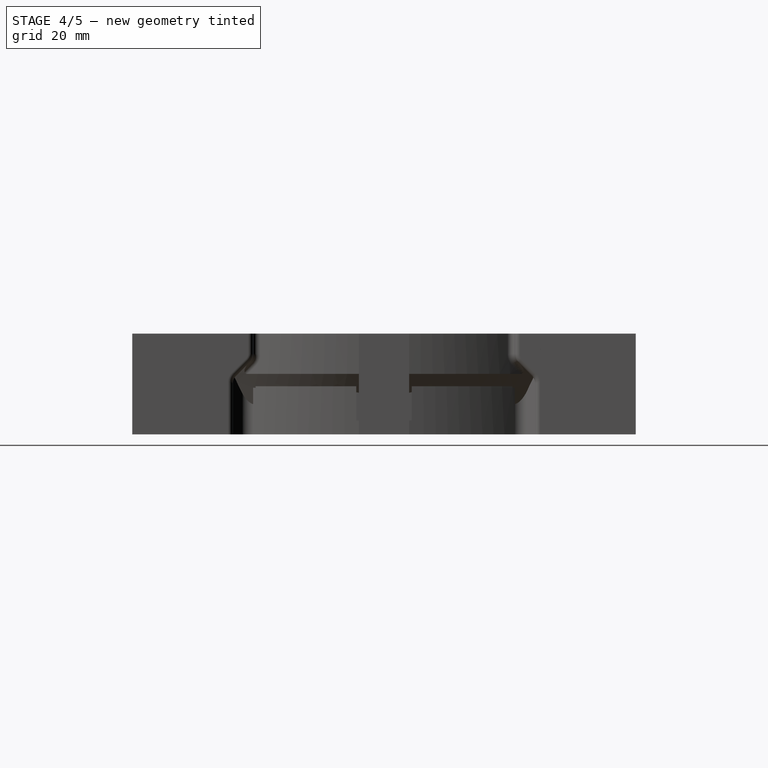
[diagram: stage 4 of 5 — right view after this stage's code; geometry added in this stage tinted green]
FEATURE [PartDesign::Fillet] Fillet016
  Base = -> Fillet015 [Edge652]
  Placement = pos=(0,0,0) rot=(1,0,0;1.5708rad)
  Radius = 2
FEATURE [PartDesign::Fillet] Fillet017
  Base = -> Fillet016 [Edge74]
  Placement = pos=(0,0,0) rot=(1,0,0;1.5708rad)
  Radius = 1
FEATURE [PartDesign::Fillet] Fillet018
  Base = -> Fillet017 [Edge29]
  Placement = pos=(0,0,0) rot=(1,0,0;1.5708rad)
  Radius = 1
FEATURE [PartDesign::Fillet] Fillet019
  Base = -> Fillet018 [Edge72]
  Placement = pos=(0,0,0) rot=(1,0,0;1.5708rad)
  Radius = 2
FEATURE [PartDesign::Fillet] Fillet020
  Base = -> Fillet019 [Edge326]
  Placement = pos=(0,0,0) rot=(1,0,0;1.5708rad)
  Radius = 2
FEATURE [PartDesign::Fillet] Fillet021
  Base = -> Fillet020 [Edge36]
  Placement = pos=(0,0,0) rot=(1,0,0;1.5708rad)
  Radius = 1
FEATURE [PartDesign::Fillet] Fillet022
  Base = -> Fillet021 [Edge128]
  Placement = pos=(0,0,0) rot=(1,0,0;1.5708rad)
  Radius = 1
FEATURE [PartDesign::Fillet] Fillet023
  Base = -> Fillet022 [Edge80]
  Placement = pos=(0,0,0) rot=(1,0,0;1.5708rad)
  Radius = 2
FEATURE [PartDesign::Fillet] Fillet024
  Base = -> Fillet023 [Edge430]
  Placement = pos=(0,0,0) rot=(1,0,0;1.5708rad)
  Radius = 2
FEATURE [PartDesign::Fillet] Fillet025
  Base = -> Fillet024 [Edge6]
  Placement = pos=(0,0,0) rot=(1,0,0;1.5708rad)
  Radius = 1
FEATURE [PartDesign::Fillet] Fillet026
  Base = -> Fillet025 [Edge120]
  Placement = pos=(0,0,0) rot=(1,0,0;1.5708rad)
  Radius = 1
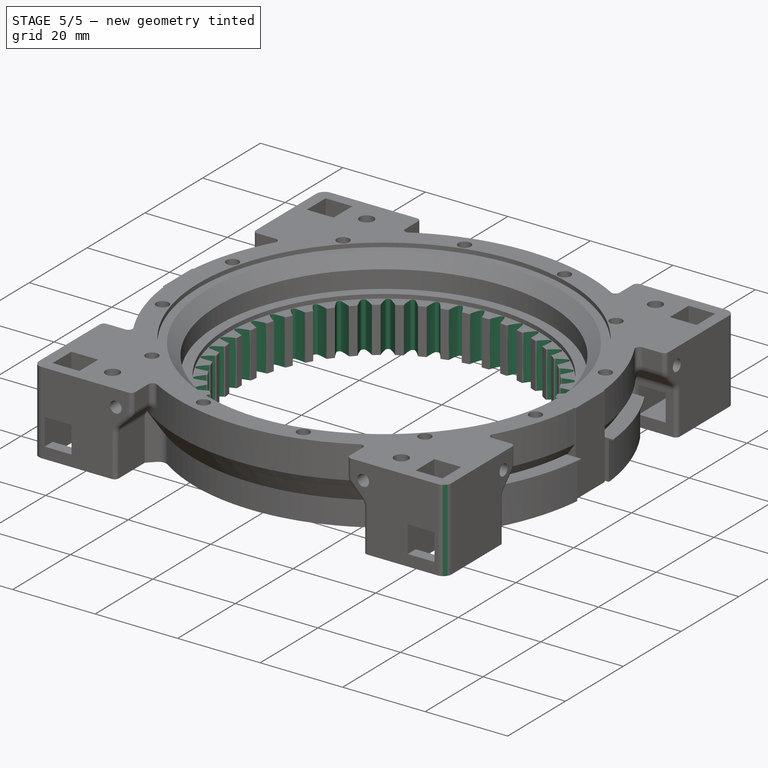
[diagram: stage 5 of 5 — iso view after this stage's code; geometry added in this stage tinted green]
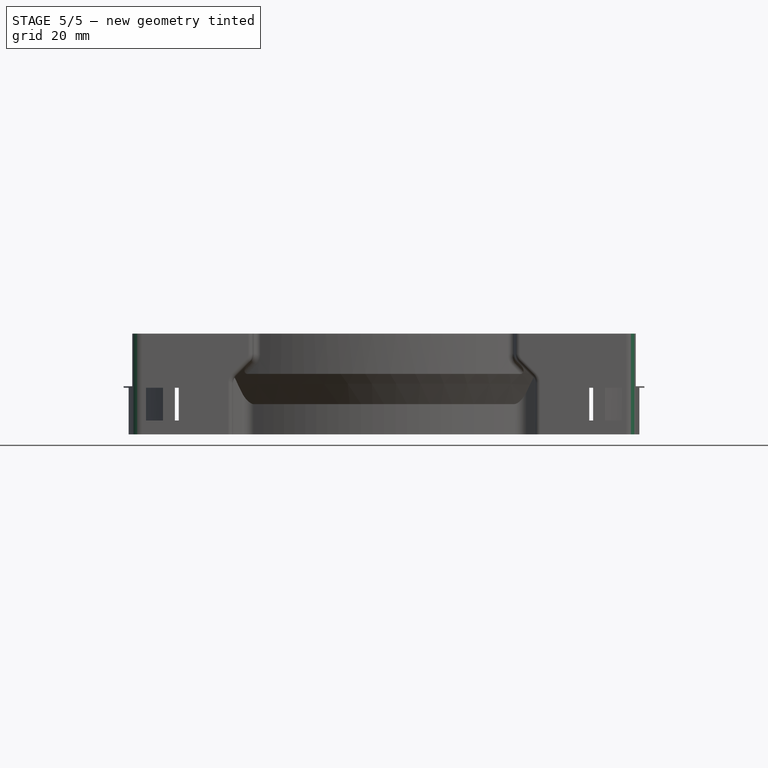
[diagram: stage 5 of 5 — front view after this stage's code; geometry added in this stage tinted green]
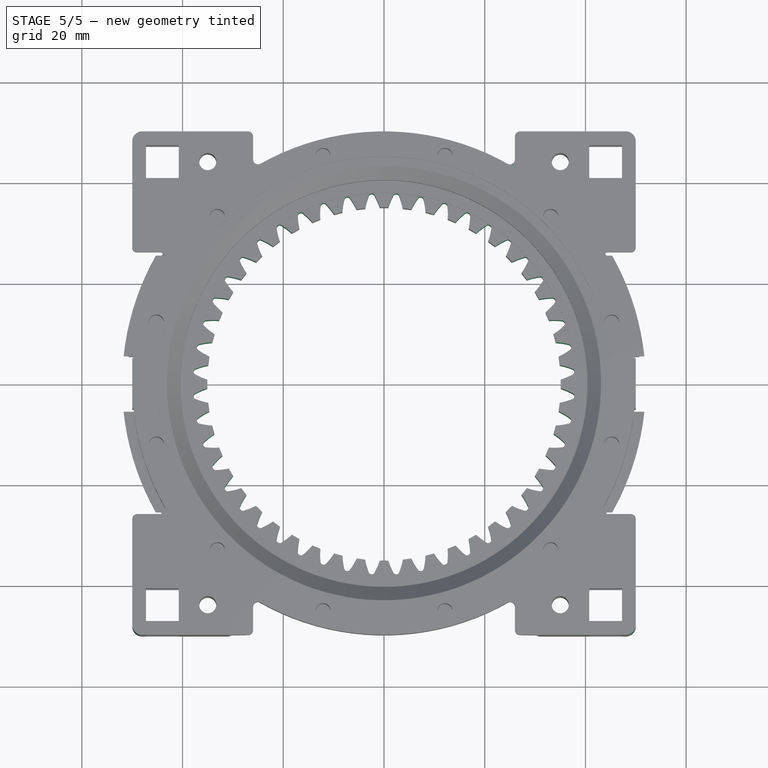
[diagram: stage 5 of 5 — top view after this stage's code; geometry added in this stage tinted green]
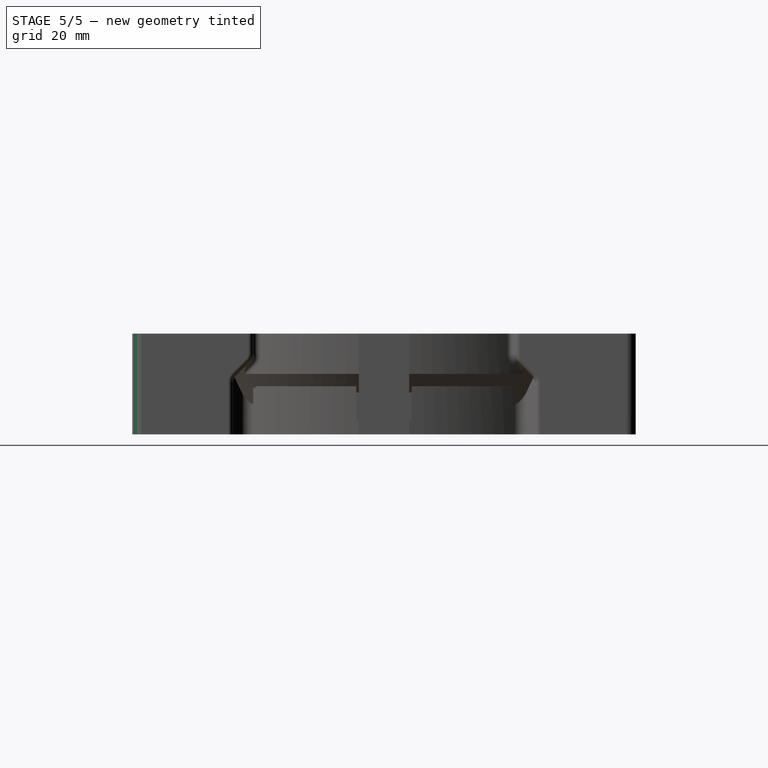
[diagram: stage 5 of 5 — right view after this stage's code; geometry added in this stage tinted green]
FEATURE [Sketcher::SketchObject] Sketch022  label="HorizontalMountPlane"
  Placement = pos=(0,0,29) rot=(0,0,1;3.14159rad)
  Support = -> Revolution [Face11]
  sketch-geometry (66):
    g0: LineSegment [constr] StartX=30 StartY=-50 StartZ=0 EndX=-30 EndY=-50 EndZ=0
    g1: Circle [constr] CenterX=0 CenterY=0 CenterZ=0 NormalX=0 NormalY=0 NormalZ=1 Radius=50
    g2: LineSegment [constr] StartX=-44 StartY=44 StartZ=0 EndX=44 EndY=44 EndZ=0
    g3: LineSegment [constr] StartX=44 StartY=44 StartZ=0 EndX=44 EndY=-44 EndZ=0
    g4: LineSegment [constr] StartX=44 StartY=-44 StartZ=0 EndX=-44 EndY=-44 EndZ=0
    g5: LineSegment [constr] StartX=-44 StartY=-44 StartZ=0 EndX=-44 EndY=44 EndZ=0
    g6: LineSegment StartX=-47.25 StartY=47.25 StartZ=0 EndX=-40.75 EndY=47.25 EndZ=0
    g7: LineSegment StartX=-40.75 StartY=47.25 StartZ=0 EndX=-40.75 EndY=40.75 EndZ=0
    g8: LineSegment StartX=-40.75 StartY=40.75 StartZ=0 EndX=-47.25 EndY=40.75 EndZ=0
    g9: LineSegment StartX=-47.25 StartY=40.75 StartZ=0 EndX=-47.25 EndY=47.25 EndZ=0
    g10: LineSegment StartX=40.75 StartY=47.25 StartZ=0 EndX=47.25 EndY=47.25 EndZ=0
    g11: LineSegment StartX=47.25 StartY=47.25 StartZ=0 EndX=47.25 EndY=40.75 EndZ=0
    g12: LineSegment StartX=47.25 StartY=40.75 StartZ=0 EndX=40.75 EndY=40.75 EndZ=0
    g13: LineSegment StartX=40.75 StartY=40.75 StartZ=0 EndX=40.75 EndY=47.25 EndZ=0
    g14: LineSegment StartX=-47.25 StartY=-40.75 StartZ=0 EndX=-40.75 EndY=-40.75 EndZ=0
    g15: LineSegment StartX=-40.75 StartY=-40.75 StartZ=0 EndX=-40.75 EndY=-47.25 EndZ=0
    g16: LineSegment StartX=-40.75 StartY=-47.25 StartZ=0 EndX=-47.25 EndY=-47.25 EndZ=0
    g17: LineSegment StartX=-47.25 StartY=-47.25 StartZ=0 EndX=-47.25 EndY=-40.75 EndZ=0
    g18: LineSegment StartX=40.75 StartY=-40.75 StartZ=0 EndX=47.25 EndY=-40.75 EndZ=0
    g19: LineSegment StartX=47.25 StartY=-40.75 StartZ=0 EndX=47.25 EndY=-47.25 EndZ=0
    g20: LineSegment StartX=47.25 StartY=-47.25 StartZ=0 EndX=40.75 EndY=-47.25 EndZ=0
    g21: LineSegment StartX=40.75 StartY=-47.25 StartZ=0 EndX=40.75 EndY=-40.75 EndZ=0
    g22: LineSegment [constr] StartX=-47.25 StartY=40.75 StartZ=0 EndX=-47.25 EndY=-40.75 EndZ=0
    g23: LineSegment [constr] StartX=-40.75 StartY=47.25 StartZ=0 EndX=40.75 EndY=47.25 EndZ=0
    g24: LineSegment [constr] StartX=47.25 StartY=40.75 StartZ=0 EndX=47.25 EndY=-40.75 EndZ=0
    g25: Circle CenterX=-35 CenterY=44 CenterZ=0 NormalX=0 NormalY=0 NormalZ=1 Radius=1.7
    g26: Circle CenterX=-35 CenterY=-44 CenterZ=0 NormalX=0 NormalY=0 NormalZ=1 Radius=1.7
    g27: Circle CenterX=35 CenterY=-44 CenterZ=0 NormalX=0 NormalY=0 NormalZ=1 Radius=1.7
    g28: Circle CenterX=35 CenterY=44 CenterZ=0 NormalX=0 NormalY=0 NormalZ=1 Radius=1.7
    g29: LineSegment [constr] StartX=-35 StartY=44 StartZ=0 EndX=-35 EndY=-44 EndZ=0
    g30: LineSegment [constr] StartX=35 StartY=-44 StartZ=0 EndX=35 EndY=44 EndZ=0
    g31: LineSegment StartX=30 StartY=50 StartZ=0 EndX=30 EndY=40 EndZ=0
    g32: LineSegment StartX=40 StartY=30 StartZ=0 EndX=50 EndY=30 EndZ=0
    g33: LineSegment StartX=-30 StartY=50 StartZ=0 EndX=-30 EndY=40 EndZ=0
    g34: LineSegment StartX=-50 StartY=30 StartZ=0 EndX=-40 EndY=30 EndZ=0
    g35: LineSegment StartX=-50 StartY=-30 StartZ=0 EndX=-40 EndY=-30 EndZ=0
    g36: LineSegment StartX=-30 StartY=-40 StartZ=0 EndX=-30 EndY=-50 EndZ=0
    g37: LineSegment StartX=30 StartY=-40 StartZ=0 EndX=30 EndY=-50 EndZ=0
    g38: LineSegment StartX=40 StartY=-30 StartZ=0 EndX=50 EndY=-30 EndZ=0
    g39: LineSegment StartX=-50 StartY=-50 StartZ=0 EndX=-50 EndY=-30 EndZ=0
    g40: LineSegment StartX=-50 StartY=-50 StartZ=0 EndX=-30 EndY=-50 EndZ=0
    g41: LineSegment StartX=30 StartY=-50 StartZ=0 EndX=50 EndY=-50 EndZ=0
    g42: LineSegment StartX=50 StartY=-50 StartZ=0 EndX=50 EndY=-30 EndZ=0
    g43: LineSegment StartX=30 StartY=50 StartZ=0 EndX=50 EndY=50 EndZ=0
    g44: LineSegment StartX=50 StartY=50 StartZ=0 EndX=50 EndY=30 EndZ=0
    g45: LineSegment StartX=-50 StartY=50 StartZ=0 EndX=-30 EndY=50 EndZ=0
    g46: LineSegment StartX=-50 StartY=30 StartZ=0 EndX=-50 EndY=50 EndZ=0
    g47: LineSegment [constr] StartX=-30 StartY=50 StartZ=0 EndX=30 EndY=50 EndZ=0
    g48: LineSegment [constr] StartX=-50 StartY=30 StartZ=0 EndX=-50 EndY=-30 EndZ=0
    g49: LineSegment [constr] StartX=50 StartY=30 StartZ=0 EndX=50 EndY=-30 EndZ=0
    g50: ArcOfCircle CenterX=0 CenterY=0 CenterZ=0 NormalX=0 NormalY=0 NormalZ=1 Radius=45 StartAngle=0.627609 EndAngle=0.943187
    g51: ArcOfCircle CenterX=0 CenterY=0 CenterZ=0 NormalX=0 NormalY=0 NormalZ=1 Radius=45 StartAngle=2.19841 EndAngle=2.51398
    g52: ArcOfCircle CenterX=0 CenterY=0 CenterZ=0 NormalX=0 NormalY=0 NormalZ=1 Radius=45 StartAngle=3.7692 EndAngle=4.08478
    g53: ArcOfCircle CenterX=0 CenterY=0 CenterZ=0 NormalX=0 NormalY=0 NormalZ=1 Radius=45 StartAngle=5.34 EndAngle=5.65558
    g54: LineSegment StartX=-30 StartY=40 StartZ=0 EndX=-26.4245 EndY=36.4245 EndZ=0
    g55: LineSegment StartX=-36.4245 StartY=26.4245 StartZ=0 EndX=-40 EndY=30 EndZ=0
    g56: LineSegment StartX=26.4245 StartY=36.4245 StartZ=0 EndX=30 EndY=40 EndZ=0
    g57: LineSegment StartX=36.4245 StartY=26.4245 StartZ=0 EndX=40 EndY=30 EndZ=0
    g58: LineSegment StartX=36.4245 StartY=-26.4245 StartZ=0 EndX=40 EndY=-30 EndZ=0
    g59: LineSegment StartX=26.4245 StartY=-36.4245 StartZ=0 EndX=30 EndY=-40 EndZ=0
    g60: LineSegment StartX=-40 StartY=-30 StartZ=0 EndX=-36.4245 EndY=-26.4245 EndZ=0
    g61: LineSegment StartX=-30 StartY=-40 StartZ=0 EndX=-26.4245 EndY=-36.4245 EndZ=0
    g62: LineSegment [constr] StartX=-26.4245 StartY=-36.4245 StartZ=0 EndX=36.4245 EndY=26.4245 EndZ=0
    g63: LineSegment [constr] StartX=-36.4245 StartY=-26.4245 StartZ=0 EndX=26.4245 EndY=36.4245 EndZ=0
    g64: LineSegment [constr] StartX=-36.4245 StartY=26.4245 StartZ=0 EndX=26.4245 EndY=-36.4245 EndZ=0
    g65: LineSegment [constr] StartX=36.4245 StartY=-26.4245 StartZ=0 EndX=-26.4245 EndY=36.4245 EndZ=0
  constraints (183):
    c: Horizontal(g0)
    c: Coincident(g1,g-1)
    c: Radius(g1) = 50
    c: Coincident(g2,g3)
    c: Coincident(g3,g4)
    c: Coincident(g4,g5)
    c: Coincident(g5,g2)
    c: Horizontal(g2)
    c: Horizontal(g4)
    c: Vertical(g3)
    c: Vertical(g5)
    c: Coincident(g6,g7)
    c: Coincident(g7,g8)
    c: Coincident(g8,g9)
    c: Coincident(g9,g6)
    c: Horizontal(g6)
    c: Horizontal(g8)
    c: Vertical(g7)
    c: Vertical(g9)
    c: Symmetric(g8,g6,g2)
    c: Equal(g9,g6)
    c: DistanceY(g8,g6) = 6.5
    c: Coincident(g10,g11)
    c: Coincident(g11,g12)
    c: Coincident(g12,g13)
    c: Coincident(g13,g10)
    c: Horizontal(g10)
    c: Horizontal(g12)
    c: Vertical(g11)
    c: Vertical(g13)
    c: Symmetric(g12,g10,g2)
    c: Equal(g11,g10)
    c: Coincident(g14,g15)
    c: Coincident(g15,g16)
    c: Coincident(g16,g17)
    c: Coincident(g17,g14)
    c: Horizontal(g14)
    c: Horizontal(g16)
    c: Vertical(g15)
    c: Vertical(g17)
    c: Coincident(g18,g19)
    c: Coincident(g19,g20)
    c: Coincident(g20,g21)
    c: Coincident(g21,g18)
    c: Horizontal(g18)
    c: Horizontal(g20)
    c: Vertical(g19)
    c: Vertical(g21)
    c: Symmetric(g18,g20,g3)
    c: Symmetric(g14,g15,g4)
    c: Equal(g14,g15)
    c: Equal(g18,g21)
    c: Coincident(g22,g8)
    c: Coincident(g22,g14)
    c: Vertical(g22)
    c: Coincident(g23,g6)
    c: Coincident(g23,g10)
    c: Horizontal(g23)
    c: Coincident(g24,g11)
    c: Coincident(g24,g18)
    c: Vertical(g24)
    c: Equal(g2,g5)
    c: DistanceY(g3,g2) = 88
    c: Symmetric(g7,g18,g-1)
    c: PointOnObject(g25,g2)
    c: PointOnObject(g26,g4)
    c: PointOnObject(g27,g4)
    c: PointOnObject(g28,g2)
    c: DistanceX(g2,g25) = 9
    c: Coincident(g29,g25)
    c: Vertical(g29)
    c: Coincident(g26,g29)
    c: Coincident(g30,g27)
    c: Coincident(g30,g28)
    c: Vertical(g30)
    c: Symmetric(g28,g25,g-2)
    c: DistanceX(g26,g27) = 70
    c: PointOnObject(g31,g1)
    c: Vertical(g31)
    c: PointOnObject(g32,g1)
    c: Horizontal(g32)
    c: PointOnObject(g33,g1)
    c: Vertical(g33)
    c: PointOnObject(g34,g1)
    c: Horizontal(g34)
    c: PointOnObject(g35,g1)
    c: Horizontal(g35)
    c: PointOnObject(g36,g1)
    c: PointOnObject(g40,g0)
    c: Vertical(g36)
    c: PointOnObject(g37,g1)
    c: PointOnObject(g41,g0)
    c: PointOnObject(g38,g1)
    c: Horizontal(g38)
    c: Coincident(g39,g35)
    c: Coincident(g40,g39)
    c: Coincident(g0,g36)
    c: Vertical(g37)
    c: Horizontal(g41)
    c: Vertical(g42)
    c: Coincident(g0,g37)
    c: Coincident(g43,g31)
    c: Horizontal(g43)
    c: Vertical(g44)
    c: Coincident(g45,g33)
    c: Horizontal(g45)
    c: Coincident(g46,g34)
    c: Vertical(g46)
    c: Coincident(g47,g33)
    c: Coincident(g47,g31)
    c: Horizontal(g47)
    c: Coincident(g48,g34)
    c: Coincident(g48,g35)
    c: Vertical(g48)
    c: DistanceY(g39,g45) = 100
    c: Equal(g46,g44)
    c: Equal(g44,g42)
    c: Equal(g42,g39)
    c: Coincident(g45,g46)
    c: Coincident(g43,g44)
    c: Equal(g45,g43)
    c: Coincident(g42,g38)
    c: Coincident(g49,g44)
    c: Vertical(g49)
    c: Coincident(g32,g44)
    c: Horizontal(g40)
    c: Equal(g40,g45)
    c: Equal(g45,g43)
    c: Equal(g43,g41)
    c: Coincident(g42,g41)
    c: Vertical(g39)
    c: Symmetric(g41,g45,g-1)
    c: Coincident(g38,g49)
    c: Equal(g47,g48)
    c: DistanceX(g45,g43) = 100
    c: Coincident(g0,g40)
    c: Coincident(g0,g41)
    c: DistanceX(g39,g0) = 20
    c: Radius(g26) = 1.7
    c: Equal(g26,g27)
    c: Equal(g26,g25)
    c: Equal(g26,g28)
    c: Coincident(g50,g-1)
    c: Coincident(g51,g-1)
    c: Coincident(g52,g-1)
    c: Coincident(g53,g-1)
    c: Coincident(g54,g33)
    c: Coincident(g54,g51)
    c: Coincident(g55,g51)
    c: Coincident(g55,g34)
    c: Coincident(g56,g31)
    c: Coincident(g57,g50)
    c: Coincident(g57,g32)
    c: Coincident(g58,g53)
    c: Coincident(g58,g38)
    c: Coincident(g59,g53)
    c: Coincident(g59,g37)
    c: Coincident(g60,g35)
    c: Coincident(g60,g52)
    c: Coincident(g61,g36)
    c: Coincident(g61,g52)
    c: Coincident(g56,g50)
    c: Radius(g52) = 45
    c: Equal(g52,g51)
    c: Equal(g52,g50)
    c: Equal(g52,g53)
    c: Coincident(g62,g52)
    c: Coincident(g62,g50)
    c: Coincident(g63,g52)
    c: Coincident(g63,g50)
    c: Angle(g4,g62) = 0.785398
    c: Equal(g63,g62)
    c: Coincident(g64,g51)
    c: Coincident(g64,g53)
    c: Coincident(g65,g53)
    c: Coincident(g65,g51)
    c: Angle(g4,g61) = 0.785398
    c: Equal(g62,g63)
    c: Angle(g60) = 0.785398
    c: Angle(g5,g55) = 0.785398
    c: Angle(g5,g54) = 0.785398
    c: Angle(g59,g4) = 0.785398
    c: Angle(g58,g4) = 0.785398
FEATURE [Part::Part2DObjectPython] InvoluteGear004  # Draft 2D object (typed FeaturePython)
  ExternalGear = true
  HighPrecision = true
  Modules = 1.5
  NumberOfTeeth = 18
  PressureAngle = 20
FEATURE [PartDesign::Pad] Pad013  label="GearPad"
  Length = 15
  Length2 = 10
  Placement = pos=(0,0,8) rot=(0,0,1;0rad)
  Sketch = -> InvoluteGear004
  Type = 0
FEATURE [PartDesign::Fillet] Fillet027
  Base = -> Fillet026 [Edge53]
  Placement = pos=(0,0,0) rot=(1,0,0;1.5708rad)
  Radius = 2
FEATURE [PartDesign::Fillet] Fillet028
  Base = -> Fillet027 [Edge263]
  Placement = pos=(0,0,0) rot=(1,0,0;1.5708rad)
  Radius = 2
FEATURE [PartDesign::Fillet] Fillet029
  Base = -> Fillet028 [Edge44]
  Placement = pos=(0,0,0) rot=(1,0,0;1.5708rad)
  Radius = 2
FEATURE [PartDesign::Fillet] Fillet030
  Base = -> Fillet029 [Edge1]
  Placement = pos=(0,0,0) rot=(1,0,0;1.5708rad)
  Radius = 1
FEATURE [PartDesign::Fillet] Fillet031
  Base = -> Fillet030 [Edge295]
  Placement = pos=(0,0,0) rot=(1,0,0;1.5708rad)
  Radius = 1
FEATURE [PartDesign::Fillet] Fillet032
  Base = -> Fillet031 [Edge253]
  Placement = pos=(0,0,0) rot=(1,0,0;1.5708rad)
  Radius = 2
FEATURE [PartDesign::Fillet] Fillet033
  Base = -> Fillet032 [Edge282]
  Placement = pos=(0,0,0) rot=(1,0,0;1.5708rad)
  Radius = 2
FEATURE [PartDesign::Fillet] Fillet034
  Base = -> Fillet033 [Edge533]
  Placement = pos=(0,0,0) rot=(1,0,0;1.5708rad)
  Radius = 2
FEATURE [PartDesign::Fillet] Fillet035
  Base = -> Fillet034 [Edge551]
  Placement = pos=(0,0,0) rot=(1,0,0;1.5708rad)
  Radius = 2
FEATURE [Part::Cut] Cut
  Base = -> Fillet035
  Tool = -> Pad013
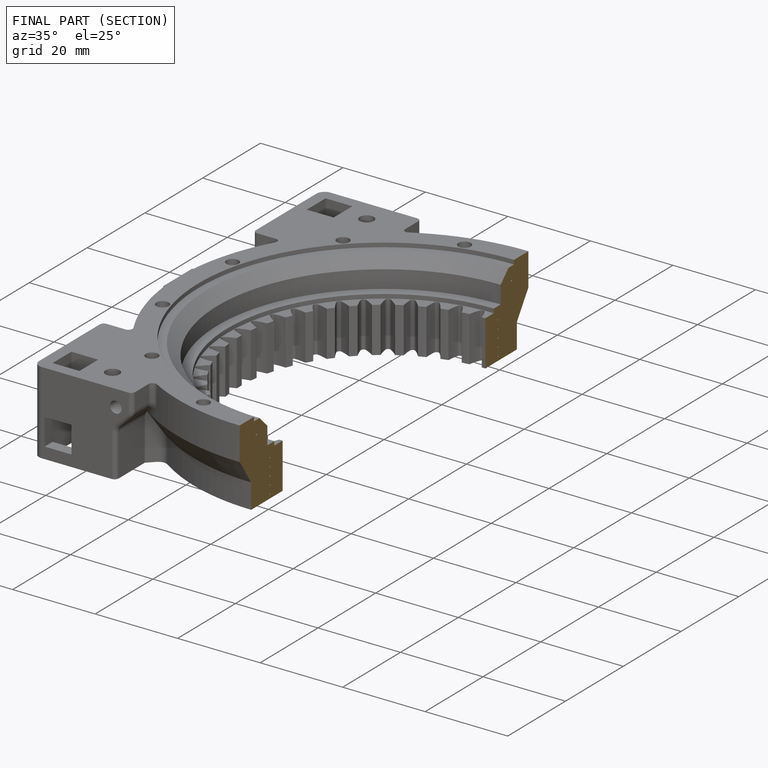
[diagram: finished part — half-section view (interior)]
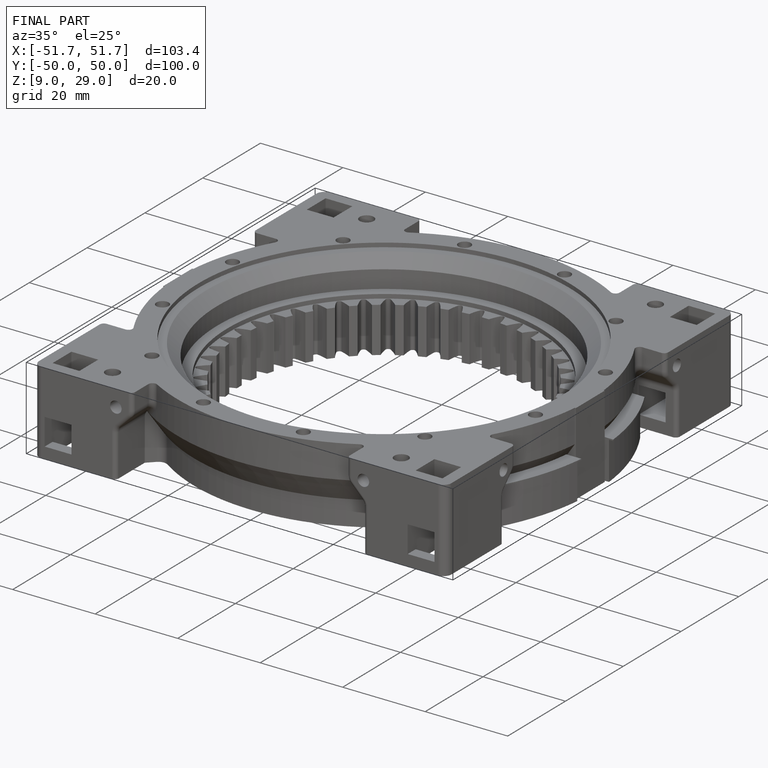
[diagram: finished part — iso view with bounding-box wireframe]
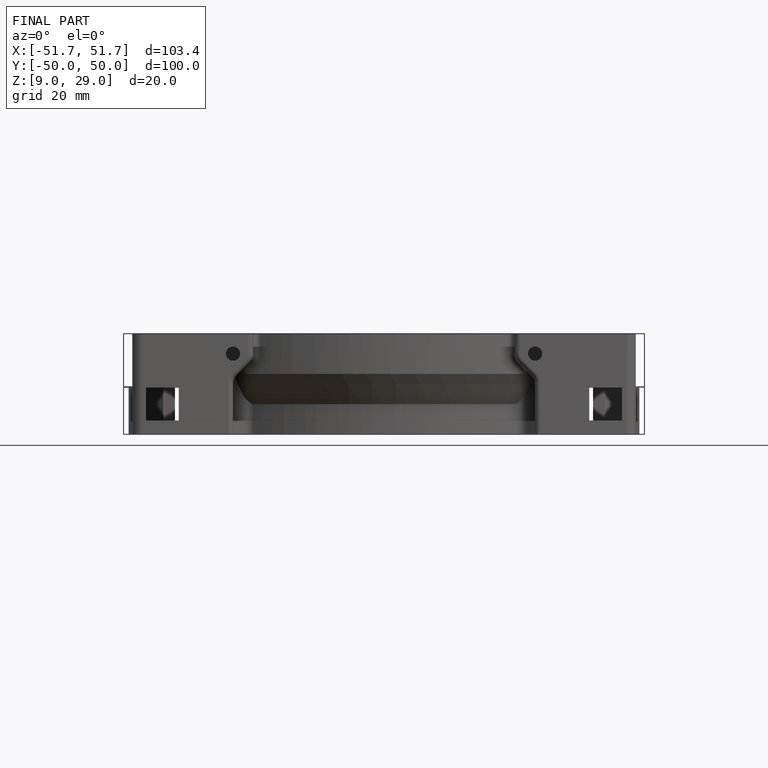
[diagram: finished part — front view with bounding-box wireframe]
